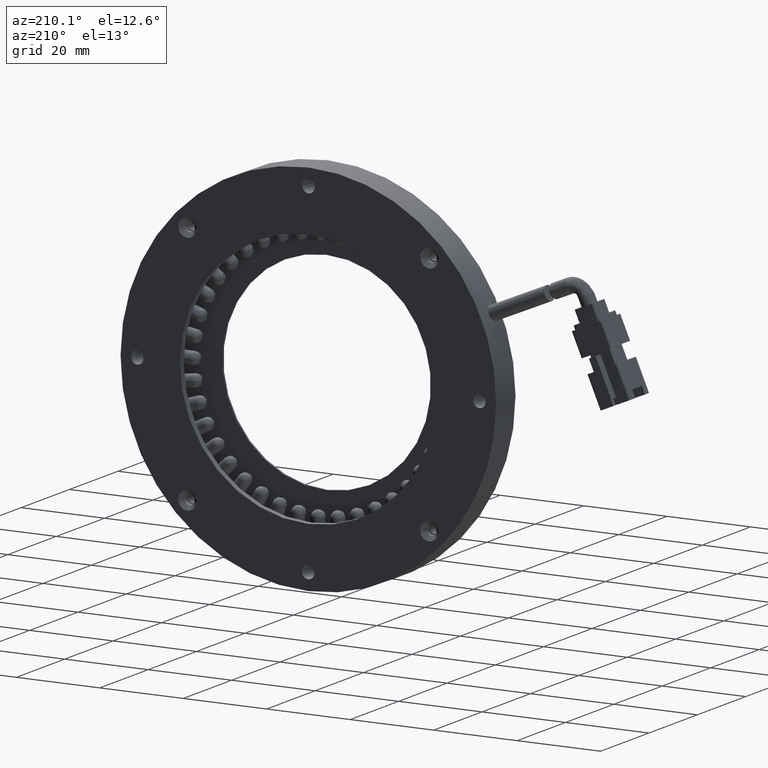
[diagram: clean part render]
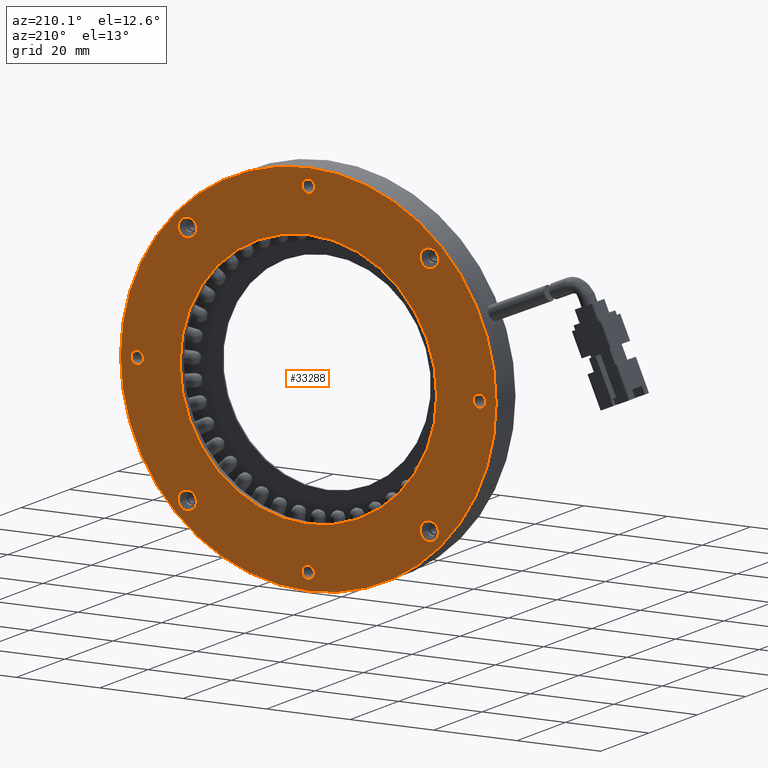
[diagram: same view with one face highlighted and labeled with its STEP entity id]
A machine part, auxiliary view. The second image highlights one B-rep face of the part: STEP entity #33288.
In plain terms, the highlighted planar face has unit normal (0, -1, 0).
Its self-contained STEP definition (entity closure, byte-faithful):
#617 = DIRECTION ( 'NONE',  ( -1.163897087407499700E-016, 1.000000000000000000, -2.939373556709199600E-017 ) ) ;
#678 = AXIS2_PLACEMENT_3D ( 'NONE', #30735, #11768, #33909 ) ;
#688 = VERTEX_POINT ( 'NONE', #8379 ) ;
#755 = DIRECTION ( 'NONE',  ( -0.7065235946279192500, 0.0000000000000000000, -0.7076894871580640100 ) ) ;
#764 = ORIENTED_EDGE ( 'NONE', *, *, #9139, .F. ) ;
#814 = FACE_BOUND ( 'NONE', #21624, .T. ) ;
#939 = CIRCLE ( 'NONE', #3737, 2.199999999959346900 ) ;
#1607 = ORIENTED_EDGE ( 'NONE', *, *, #32097, .F. ) ;
#1626 = CARTESIAN_POINT ( 'NONE',  ( -28.27459835068420100, 7.623552123552118900, 31.79356175825647700 ) ) ;
#1709 = VERTEX_POINT ( 'NONE', #14558 ) ;
#1807 = FACE_BOUND ( 'NONE', #26059, .T. ) ;
#2162 = DIRECTION ( 'NONE',  ( -0.7065235946279214700, 0.0000000000000000000, -0.7076894871580617900 ) ) ;
#2416 = CARTESIAN_POINT ( 'NONE',  ( -36.36877210374692700, 7.623552123552118000, 1.027733399655528000 ) ) ;
#2437 = AXIS2_PLACEMENT_3D ( 'NONE', #24436, #5561, #27641 ) ;
#2552 = EDGE_CURVE ( 'NONE', #35686, #18027, #35371, .T. ) ;
#2556 = VERTEX_POINT ( 'NONE', #34532 ) ;
#2753 = DIRECTION ( 'NONE',  ( -0.7065235946279239100, 0.0000000000000000000, -0.7076894871580593500 ) ) ;
#2813 = FACE_BOUND ( 'NONE', #2960, .T. ) ;
#2960 = EDGE_LOOP ( 'NONE', ( #8352, #15765 ) ) ;
#3014 = CIRCLE ( 'NONE', #26235, 1.499999999999990500 ) ;
#3737 = AXIS2_PLACEMENT_3D ( 'NONE', #37390, #18464, #40549 ) ;
#3811 = EDGE_LOOP ( 'NONE', ( #39046, #33775 ) ) ;
#4532 = AXIS2_PLACEMENT_3D ( 'NONE', #14595, #36726, #17756 ) ;
#4762 = DIRECTION ( 'NONE',  ( -0.7065235946279216900, -1.030337130463465200E-016, -0.7076894871580615700 ) ) ;
#5052 = CARTESIAN_POINT ( 'NONE',  ( 32.58669754490909300, 7.623552123552124200, -28.96746737974479700 ) ) ;
#5149 = DIRECTION ( 'NONE',  ( -1.163897087407499700E-016, 1.000000000000000000, -2.939373556709199600E-017 ) ) ;
#5189 = CIRCLE ( 'NONE', #2437, 45.00000000000000000 ) ;
#5536 = AXIS2_PLACEMENT_3D ( 'NONE', #33896, #33858, #33610 ) ;
#5561 = DIRECTION ( 'NONE',  ( 1.163897087407499700E-016, -1.000000000000000000, 2.939373556709199600E-017 ) ) ;
#5734 = ORIENTED_EDGE ( 'NONE', *, *, #19394, .F. ) ;
#5967 = CIRCLE ( 'NONE', #13893, 30.74000000000000200 ) ;
#6362 = CIRCLE ( 'NONE', #36451, 2.199999999956160100 ) ;
#6398 = CIRCLE ( 'NONE', #678, 1.499999999999996700 ) ;
#6621 = CIRCLE ( 'NONE', #24222, 2.199999999956160100 ) ;
#7274 = CARTESIAN_POINT ( 'NONE',  ( -37.42855749568880700, 7.623552123552118000, -0.03380083108155823600 ) ) ;
#8165 = CARTESIAN_POINT ( 'NONE',  ( 3.571428571428565800, 7.623552123552121500, 0.0000000000000000000 ) ) ;
#8207 = DIRECTION ( 'NONE',  ( 0.7065235946279214700, 0.0000000000000000000, 0.7076894871580616800 ) ) ;
#8233 = EDGE_CURVE ( 'NONE', #14349, #40615, #6621, .T. ) ;
#8299 = AXIS2_PLACEMENT_3D ( 'NONE', #29200, #10253, #32358 ) ;
#8352 = ORIENTED_EDGE ( 'NONE', *, *, #22208, .F. ) ;
#8379 = CARTESIAN_POINT ( 'NONE',  ( -26.99819231020466100, 7.623552123608962300, 27.41055050802582100 ) ) ;
#8537 = CARTESIAN_POINT ( 'NONE',  ( -38.48834288763067900, 7.623552123552118000, -1.095335061818644200 ) ) ;
#8544 = CARTESIAN_POINT ( 'NONE',  ( 25.28996387029088000, 7.623552123552125100, 21.75437483523881700 ) ) ;
#8946 = CARTESIAN_POINT ( 'NONE',  ( 32.58669754490909300, 7.623552123552124200, -28.96746737974479700 ) ) ;
#9139 = EDGE_CURVE ( 'NONE', #40344, #35674, #33596, .T. ) ;
#9161 = FACE_BOUND ( 'NONE', #18109, .T. ) ;
#9245 = DIRECTION ( 'NONE',  ( -1.163897087407499700E-016, 1.000000000000000000, -2.939373556709199600E-017 ) ) ;
#9617 = EDGE_CURVE ( 'NONE', #38622, #688, #939, .T. ) ;
#9704 = EDGE_LOOP ( 'NONE', ( #28792, #24395 ) ) ;
#10009 = ORIENTED_EDGE ( 'NONE', *, *, #13892, .F. ) ;
#10118 = FACE_BOUND ( 'NONE', #24672, .T. ) ;
#10253 = DIRECTION ( 'NONE',  ( 1.163897087407499700E-016, -1.000000000000000000, 2.939373556709199600E-017 ) ) ;
#10424 = DIRECTION ( 'NONE',  ( -0.7065235946279214700, 0.0000000000000000000, -0.7076894871580617900 ) ) ;
#11074 = CARTESIAN_POINT ( 'NONE',  ( 32.53889595117335900, 7.623552123552126000, 29.01526897348052700 ) ) ;
#11326 = DIRECTION ( 'NONE',  ( 0.7065235946279216900, 1.128642469731169200E-016, 0.7076894871580616800 ) ) ;
#11384 = VERTEX_POINT ( 'NONE', #18904 ) ;
#11453 = AXIS2_PLACEMENT_3D ( 'NONE', #24023, #5149, #27234 ) ;
#11483 = VERTEX_POINT ( 'NONE', #26112 ) ;
#11567 = CARTESIAN_POINT ( 'NONE',  ( -28.22213318682790400, 7.623552123552117100, -31.84602692211277400 ) ) ;
#11768 = DIRECTION ( 'NONE',  ( -1.163897087407499700E-016, 1.000000000000000000, -2.939373556709199600E-017 ) ) ;
#11914 = EDGE_LOOP ( 'NONE', ( #764, #29890 ) ) ;
#12107 = DIRECTION ( 'NONE',  ( 0.7065235946279214700, 0.0000000000000000000, 0.7076894871580616800 ) ) ;
#12420 = AXIS2_PLACEMENT_3D ( 'NONE', #8946, #31047, #12107 ) ;
#12614 = CARTESIAN_POINT ( 'NONE',  ( -18.14710672743374400, 7.623552123552118000, -21.75437483523882100 ) ) ;
#12915 = EDGE_CURVE ( 'NONE', #28885, #2556, #14248, .T. ) ;
#13440 = CARTESIAN_POINT ( 'NONE',  ( 4.597413132288457900, 7.623552123552124200, 42.06152029785445700 ) ) ;
#13821 = ORIENTED_EDGE ( 'NONE', *, *, #20883, .F. ) ;
#13844 = CARTESIAN_POINT ( 'NONE',  ( 44.57141463854593900, 7.623552123552127700, 0.03380083108184966900 ) ) ;
#13892 = EDGE_CURVE ( 'NONE', #18027, #35686, #31368, .T. ) ;
#13893 = AXIS2_PLACEMENT_3D ( 'NONE', #8165, #30274, #11326 ) ;
#13999 = VERTEX_POINT ( 'NONE', #2416 ) ;
#14069 = EDGE_CURVE ( 'NONE', #688, #38622, #40669, .T. ) ;
#14227 = DIRECTION ( 'NONE',  ( 0.7065235946279213600, 0.0000000000000000000, 0.7076894871580619000 ) ) ;
#14248 = CIRCLE ( 'NONE', #36277, 1.499999999999994400 ) ;
#14276 = AXIS2_PLACEMENT_3D ( 'NONE', #28181, #9245, #31355 ) ;
#14349 = VERTEX_POINT ( 'NONE', #39265 ) ;
#14380 = ORIENTED_EDGE ( 'NONE', *, *, #38306, .F. ) ;
#14558 = CARTESIAN_POINT ( 'NONE',  ( 43.51162924660406600, 7.623552123552127700, -1.027733399655238700 ) ) ;
#14595 = CARTESIAN_POINT ( 'NONE',  ( 3.605229402510262900, 7.623552123552121500, -40.99998606711737600 ) ) ;
#14658 = EDGE_LOOP ( 'NONE', ( #19316, #1607 ) ) ;
#14799 = VERTEX_POINT ( 'NONE', #8537 ) ;
#14933 = AXIS2_PLACEMENT_3D ( 'NONE', #1626, #23608, #4762 ) ;
#15673 = AXIS2_PLACEMENT_3D ( 'NONE', #19408, #617, #22599 ) ;
#15765 = ORIENTED_EDGE ( 'NONE', *, *, #35609, .F. ) ;
#16376 = DIRECTION ( 'NONE',  ( -1.163897087407499700E-016, 1.000000000000000000, -2.939373556709199600E-017 ) ) ;
#16584 = VERTEX_POINT ( 'NONE', #8544 ) ;
#16995 = DIRECTION ( 'NONE',  ( -0.7065235946279235800, 0.0000000000000000000, -0.7076894871580596800 ) ) ;
#17484 = FACE_BOUND ( 'NONE', #14658, .T. ) ;
#17756 = DIRECTION ( 'NONE',  ( -0.7065235946279202500, 0.0000000000000000000, -0.7076894871580629000 ) ) ;
#18027 = VERTEX_POINT ( 'NONE', #39450 ) ;
#18109 = EDGE_LOOP ( 'NONE', ( #10009, #34200 ) ) ;
#18198 = CARTESIAN_POINT ( 'NONE',  ( 4.665014794452143400, 7.623552123552121500, -39.93845183638028800 ) ) ;
#18464 = DIRECTION ( 'NONE',  ( -1.163897087407499700E-016, 1.000000000000000000, -2.939373556709199600E-017 ) ) ;
#18501 = FACE_BOUND ( 'NONE', #3811, .T. ) ;
#18583 = CIRCLE ( 'NONE', #11453, 30.74000000000000200 ) ;
#18656 = CARTESIAN_POINT ( 'NONE',  ( 32.53889595117335900, 7.623552123552126000, 29.01526897348052700 ) ) ;
#18904 = CARTESIAN_POINT ( 'NONE',  ( 34.14104945310195700, 7.623552123552124200, -27.41055050798560400 ) ) ;
#19316 = ORIENTED_EDGE ( 'NONE', *, *, #29220, .F. ) ;
#19394 = EDGE_CURVE ( 'NONE', #40615, #14349, #6362, .T. ) ;
#19408 = CARTESIAN_POINT ( 'NONE',  ( -25.39603880831622700, 7.623552123495273700, -29.01526897348052400 ) ) ;
#19472 = FACE_OUTER_BOUND ( 'NONE', #21170, .T. ) ;
#19541 = DIRECTION ( 'NONE',  ( -1.163897087407499700E-016, 1.000000000000000000, -2.939373556709199600E-017 ) ) ;
#20883 = EDGE_CURVE ( 'NONE', #37647, #37356, #26941, .T. ) ;
#20976 = DIRECTION ( 'NONE',  ( -1.163897087407499700E-016, 1.000000000000000000, -2.939373556709199600E-017 ) ) ;
#21170 = EDGE_LOOP ( 'NONE', ( #36823, #13821 ) ) ;
#21549 = CIRCLE ( 'NONE', #12420, 2.200000000016186800 ) ;
#21552 = ORIENTED_EDGE ( 'NONE', *, *, #30964, .F. ) ;
#21572 = DIRECTION ( 'NONE',  ( -1.163897087407499700E-016, 1.000000000000000000, -2.939373556709199600E-017 ) ) ;
#21624 = EDGE_LOOP ( 'NONE', ( #29475, #21552 ) ) ;
#21856 = DIRECTION ( 'NONE',  ( 0.7065235946279213600, 0.0000000000000000000, 0.7076894871580619000 ) ) ;
#22010 = CIRCLE ( 'NONE', #34165, 2.200000000016186800 ) ;
#22208 = EDGE_CURVE ( 'NONE', #16584, #33053, #5967, .T. ) ;
#22599 = DIRECTION ( 'NONE',  ( 0.7065235946279214700, 0.0000000000000000000, 0.7076894871580617900 ) ) ;
#22922 = AXIS2_PLACEMENT_3D ( 'NONE', #35370, #16376, #38501 ) ;
#23141 = AXIS2_PLACEMENT_3D ( 'NONE', #40468, #21572, #2753 ) ;
#23608 = DIRECTION ( 'NONE',  ( 1.163897087407499700E-016, -1.000000000000000000, 2.939373556709199600E-017 ) ) ;
#23796 = EDGE_CURVE ( 'NONE', #37356, #37647, #5189, .T. ) ;
#24023 = CARTESIAN_POINT ( 'NONE',  ( 3.571428571428565800, 7.623552123552121500, 0.0000000000000000000 ) ) ;
#24222 = AXIS2_PLACEMENT_3D ( 'NONE', #11074, #33162, #14227 ) ;
#24395 = ORIENTED_EDGE ( 'NONE', *, *, #12915, .F. ) ;
#24436 = CARTESIAN_POINT ( 'NONE',  ( 3.571428571428565800, 7.623552123552121500, 0.0000000000000000000 ) ) ;
#24672 = EDGE_LOOP ( 'NONE', ( #38253, #5734 ) ) ;
#24973 = CARTESIAN_POINT ( 'NONE',  ( 30.98454404302290400, 7.623552123552126000, 27.45835210176381500 ) ) ;
#25960 = FACE_BOUND ( 'NONE', #9704, .T. ) ;
#26013 = CIRCLE ( 'NONE', #15673, 2.199999999962528800 ) ;
#26059 = EDGE_LOOP ( 'NONE', ( #14380, #34225 ) ) ;
#26112 = CARTESIAN_POINT ( 'NONE',  ( 31.03234563671623300, 7.623552123552124200, -30.52438425150398500 ) ) ;
#26235 = AXIS2_PLACEMENT_3D ( 'NONE', #39878, #20976, #2162 ) ;
#26941 = CIRCLE ( 'NONE', #8299, 45.00000000000000000 ) ;
#27037 = EDGE_CURVE ( 'NONE', #2556, #28885, #6398, .T. ) ;
#27072 = AXIS2_PLACEMENT_3D ( 'NONE', #13844, #35960, #16995 ) ;
#27124 = DIRECTION ( 'NONE',  ( -1.163897087407499700E-016, 1.000000000000000000, -2.939373556709199600E-017 ) ) ;
#27234 = DIRECTION ( 'NONE',  ( 0.7065235946279216900, 1.128642469731169200E-016, 0.7076894871580616800 ) ) ;
#27641 = DIRECTION ( 'NONE',  ( 0.7065235946279216900, 9.637352644315595200E-017, 0.7076894871580614600 ) ) ;
#27658 = EDGE_CURVE ( 'NONE', #35674, #40344, #26013, .T. ) ;
#28181 = CARTESIAN_POINT ( 'NONE',  ( -25.44384040205195800, 7.623552123608962300, 28.96746737974478900 ) ) ;
#28400 = CARTESIAN_POINT ( 'NONE',  ( 45.63120003048781800, 7.623552123552127700, 1.095335061818939500 ) ) ;
#28507 = CIRCLE ( 'NONE', #23141, 1.499999999999994900 ) ;
#28792 = ORIENTED_EDGE ( 'NONE', *, *, #27037, .F. ) ;
#28885 = VERTEX_POINT ( 'NONE', #13440 ) ;
#29200 = CARTESIAN_POINT ( 'NONE',  ( 3.571428571428565800, 7.623552123552121500, 0.0000000000000000000 ) ) ;
#29220 = EDGE_CURVE ( 'NONE', #1709, #32243, #28507, .T. ) ;
#29363 = CARTESIAN_POINT ( 'NONE',  ( -23.88948849389925000, 7.623552123608962300, 30.52438425146375400 ) ) ;
#29394 = DIRECTION ( 'NONE',  ( -1.163897087407499700E-016, 1.000000000000000000, -2.939373556709199600E-017 ) ) ;
#29420 = CARTESIAN_POINT ( 'NONE',  ( 35.36499032968504300, 7.623552123552126000, 31.84602692211276700 ) ) ;
#29475 = ORIENTED_EDGE ( 'NONE', *, *, #40848, .F. ) ;
#29890 = ORIENTED_EDGE ( 'NONE', *, *, #27658, .F. ) ;
#29896 = PLANE ( 'NONE',  #14933 ) ;
#30274 = DIRECTION ( 'NONE',  ( -1.163897087407499700E-016, 1.000000000000000000, -2.939373556709199600E-017 ) ) ;
#30735 = CARTESIAN_POINT ( 'NONE',  ( 3.537627740346577500, 7.623552123552124200, 40.99998606711736900 ) ) ;
#30964 = EDGE_CURVE ( 'NONE', #13999, #14799, #3014, .T. ) ;
#31047 = DIRECTION ( 'NONE',  ( -1.163897087407499700E-016, 1.000000000000000000, -2.939373556709199600E-017 ) ) ;
#31355 = DIRECTION ( 'NONE',  ( 0.7065235946279214700, 0.0000000000000000000, 0.7076894871580619000 ) ) ;
#31368 = CIRCLE ( 'NONE', #4532, 1.499999999999996700 ) ;
#32097 = EDGE_CURVE ( 'NONE', #32243, #1709, #35109, .T. ) ;
#32243 = VERTEX_POINT ( 'NONE', #28400 ) ;
#32358 = DIRECTION ( 'NONE',  ( 0.7065235946279216900, 9.637352644315595200E-017, 0.7076894871580614600 ) ) ;
#33053 = VERTEX_POINT ( 'NONE', #12614 ) ;
#33162 = DIRECTION ( 'NONE',  ( -1.163897087407499700E-016, 1.000000000000000000, -2.939373556709199600E-017 ) ) ;
#33288 = ADVANCED_FACE ( 'NONE', ( #19472, #2813, #10118, #1807, #34381, #18501, #25960, #17484, #9161, #814 ), #29896, .F. ) ;
#33596 = CIRCLE ( 'NONE', #22922, 2.199999999962528800 ) ;
#33610 = DIRECTION ( 'NONE',  ( -0.7065235946279192500, 0.0000000000000000000, -0.7076894871580640100 ) ) ;
#33775 = ORIENTED_EDGE ( 'NONE', *, *, #14069, .F. ) ;
#33858 = DIRECTION ( 'NONE',  ( -1.163897087407499700E-016, 1.000000000000000000, -2.939373556709199600E-017 ) ) ;
#33896 = CARTESIAN_POINT ( 'NONE',  ( 3.605229402510262900, 7.623552123552121500, -40.99998606711737600 ) ) ;
#33909 = DIRECTION ( 'NONE',  ( -0.7065235946279202500, 0.0000000000000000000, -0.7076894871580629000 ) ) ;
#33992 = CARTESIAN_POINT ( 'NONE',  ( -26.95039071647118300, 7.623552123495273700, -30.57218584520174100 ) ) ;
#34165 = AXIS2_PLACEMENT_3D ( 'NONE', #5052, #27124, #8207 ) ;
#34200 = ORIENTED_EDGE ( 'NONE', *, *, #2552, .F. ) ;
#34225 = ORIENTED_EDGE ( 'NONE', *, *, #38728, .F. ) ;
#34381 = FACE_BOUND ( 'NONE', #11914, .T. ) ;
#34532 = CARTESIAN_POINT ( 'NONE',  ( 2.477842348404698300, 7.623552123552124200, 39.93845183638028100 ) ) ;
#35109 = CIRCLE ( 'NONE', #27072, 1.499999999999995600 ) ;
#35370 = CARTESIAN_POINT ( 'NONE',  ( -25.39603880831622700, 7.623552123495273700, -29.01526897348052400 ) ) ;
#35371 = CIRCLE ( 'NONE', #5536, 1.499999999999994400 ) ;
#35609 = EDGE_CURVE ( 'NONE', #33053, #16584, #18583, .T. ) ;
#35674 = VERTEX_POINT ( 'NONE', #33992 ) ;
#35686 = VERTEX_POINT ( 'NONE', #18198 ) ;
#35960 = DIRECTION ( 'NONE',  ( -1.163897087407499700E-016, 1.000000000000000000, -2.939373556709199600E-017 ) ) ;
#36277 = AXIS2_PLACEMENT_3D ( 'NONE', #38477, #19541, #755 ) ;
#36451 = AXIS2_PLACEMENT_3D ( 'NONE', #18656, #40759, #21856 ) ;
#36726 = DIRECTION ( 'NONE',  ( -1.163897087407499700E-016, 1.000000000000000000, -2.939373556709199600E-017 ) ) ;
#36823 = ORIENTED_EDGE ( 'NONE', *, *, #23796, .F. ) ;
#37213 = CIRCLE ( 'NONE', #40582, 1.499999999999990500 ) ;
#37356 = VERTEX_POINT ( 'NONE', #29420 ) ;
#37390 = CARTESIAN_POINT ( 'NONE',  ( -25.44384040205195800, 7.623552123608962300, 28.96746737974478900 ) ) ;
#37647 = VERTEX_POINT ( 'NONE', #11567 ) ;
#38253 = ORIENTED_EDGE ( 'NONE', *, *, #8233, .F. ) ;
#38306 = EDGE_CURVE ( 'NONE', #11384, #11483, #21549, .T. ) ;
#38477 = CARTESIAN_POINT ( 'NONE',  ( 3.537627740346577500, 7.623552123552124200, 40.99998606711736900 ) ) ;
#38501 = DIRECTION ( 'NONE',  ( 0.7065235946279214700, 0.0000000000000000000, 0.7076894871580617900 ) ) ;
#38622 = VERTEX_POINT ( 'NONE', #29363 ) ;
#38728 = EDGE_CURVE ( 'NONE', #11483, #11384, #22010, .T. ) ;
#39046 = ORIENTED_EDGE ( 'NONE', *, *, #9617, .F. ) ;
#39265 = CARTESIAN_POINT ( 'NONE',  ( 34.09324785932381000, 7.623552123552126000, 30.57218584519723600 ) ) ;
#39430 = CARTESIAN_POINT ( 'NONE',  ( -23.84168690016127100, 7.623552123495273700, -27.45835210175930300 ) ) ;
#39450 = CARTESIAN_POINT ( 'NONE',  ( 2.545444010568383800, 7.623552123552121500, -42.06152029785446400 ) ) ;
#39878 = CARTESIAN_POINT ( 'NONE',  ( -37.42855749568880700, 7.623552123552118000, -0.03380083108155823600 ) ) ;
#40344 = VERTEX_POINT ( 'NONE', #39430 ) ;
#40468 = CARTESIAN_POINT ( 'NONE',  ( 44.57141463854593900, 7.623552123552127700, 0.03380083108184966900 ) ) ;
#40549 = DIRECTION ( 'NONE',  ( 0.7065235946279214700, 0.0000000000000000000, 0.7076894871580619000 ) ) ;
#40582 = AXIS2_PLACEMENT_3D ( 'NONE', #7274, #29394, #10424 ) ;
#40615 = VERTEX_POINT ( 'NONE', #24973 ) ;
#40669 = CIRCLE ( 'NONE', #14276, 2.199999999959346900 ) ;
#40759 = DIRECTION ( 'NONE',  ( -1.163897087407499700E-016, 1.000000000000000000, -2.939373556709199600E-017 ) ) ;
#40848 = EDGE_CURVE ( 'NONE', #14799, #13999, #37213, .T. ) ;